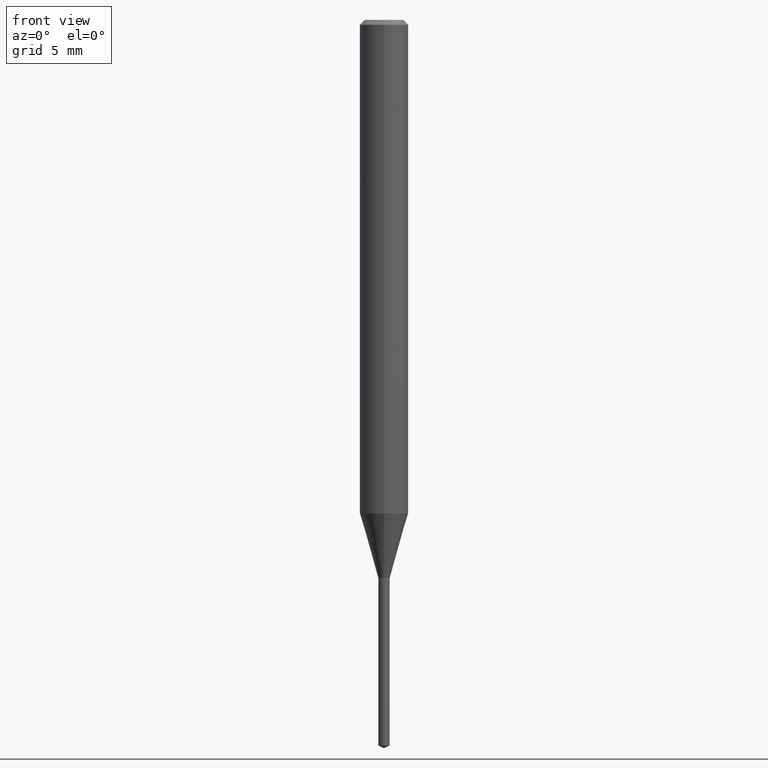
[diagram: clean part render]
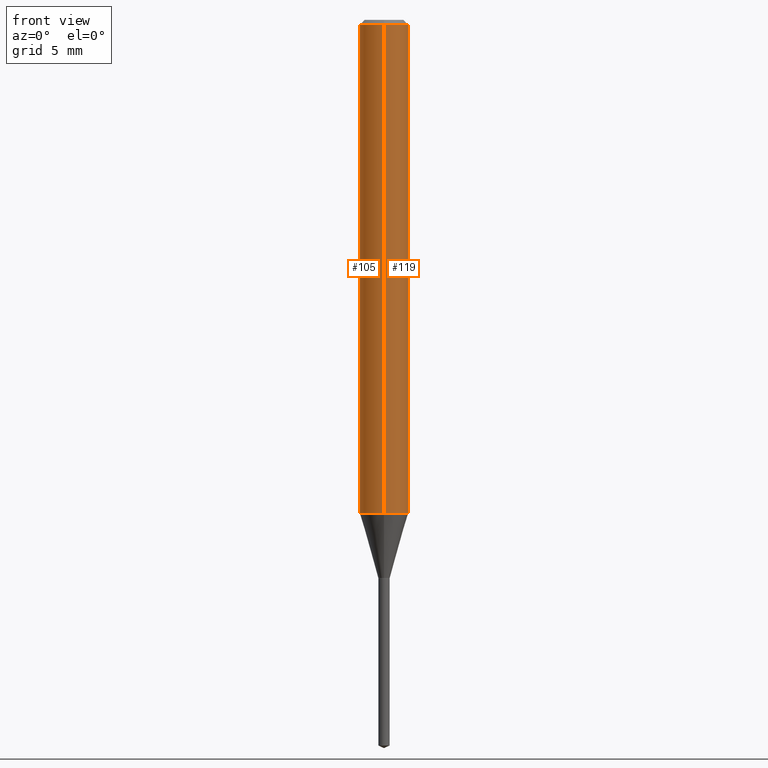
[diagram: same view with one multi-face feature highlighted, each face labeled with its STEP entity id]
A machine part, front view. The highlighted faces form ONE feature: a constant-radius fillet chain: 2 tangent blend faces with common blend radius 1.5 mm. The faces share edges in the B-rep.
Their STEP definitions:
[1] entity #119 (Cylinder):
#119=ADVANCED_FACE('',(#259),#260,.T.);
#127=EDGE_CURVE('',#181,#165,#268,.T.);
#159=EDGE_CURVE('',#167,#165,#304,.T.);
#165=VERTEX_POINT('',#312);
#167=VERTEX_POINT('',#314);
#171=EDGE_CURVE('',#173,#167,#318,.T.);
#173=VERTEX_POINT('',#320);
#181=VERTEX_POINT('',#328);
#201=EDGE_CURVE('',#181,#173,#351,.T.);
#259=FACE_OUTER_BOUND('',#406,.T.);
#260=CYLINDRICAL_SURFACE('',#407,1.5);
#268=CIRCLE('',#419,1.5);
#304=LINE('',#468,#469);
#312=CARTESIAN_POINT('',(1.83690953073357E-016,-1.5,-0.300000000000001));
#314=CARTESIAN_POINT('',(1.83690953073357E-016,-1.5,-30.489));
#318=CIRCLE('',#485,1.5);
#320=CARTESIAN_POINT('',(0.0,1.5,-30.489));
#328=CARTESIAN_POINT('',(0.0,1.5,-0.300000000000001));
#351=LINE('',#529,#530);
#406=EDGE_LOOP('',(#582,#583,#584,#585));
#407=AXIS2_PLACEMENT_3D('',#586,#587,#588);
#419=AXIS2_PLACEMENT_3D('',#598,#599,#600);
#468=CARTESIAN_POINT('',(1.83690953073357E-016,-1.5,-15.3945));
#469=VECTOR('',#649,1.0);
#485=AXIS2_PLACEMENT_3D('',#667,#668,#669);
#529=CARTESIAN_POINT('',(-1.83690953073357E-016,1.5,-15.3945));
#530=VECTOR('',#701,1.0);
#582=ORIENTED_EDGE('',*,*,#201,.F.);
#583=ORIENTED_EDGE('',*,*,#127,.T.);
#584=ORIENTED_EDGE('',*,*,#159,.F.);
#585=ORIENTED_EDGE('',*,*,#171,.F.);
#586=CARTESIAN_POINT('',(0.0,0.0,-15.3945));
#587=DIRECTION('',(-0.0,-0.0,1.0));
#588=DIRECTION('',(0.0,1.0,0.0));
#598=CARTESIAN_POINT('',(0.0,0.0,-0.300000000000001));
#599=DIRECTION('',(0.0,0.0,-1.0));
#600=DIRECTION('',(0.0,1.0,0.0));
#649=DIRECTION('',(-0.0,-0.0,1.0));
#667=CARTESIAN_POINT('',(0.0,0.0,-30.489));
#668=DIRECTION('',(0.0,0.0,-1.0));
#669=DIRECTION('',(0.0,1.0,0.0));
#701=DIRECTION('',(0.0,0.0,-1.0));
[2] entity #105 (Cylinder):
#105=ADVANCED_FACE('',(#241),#242,.T.);
#141=EDGE_CURVE('',#167,#173,#284,.T.);
#159=EDGE_CURVE('',#167,#165,#304,.T.);
#165=VERTEX_POINT('',#312);
#167=VERTEX_POINT('',#314);
#173=VERTEX_POINT('',#320);
#181=VERTEX_POINT('',#328);
#197=EDGE_CURVE('',#165,#181,#346,.T.);
#201=EDGE_CURVE('',#181,#173,#351,.T.);
#241=FACE_OUTER_BOUND('',#385,.T.);
#242=CYLINDRICAL_SURFACE('',#386,1.5);
#284=CIRCLE('',#441,1.5);
#304=LINE('',#468,#469);
#312=CARTESIAN_POINT('',(1.83690953073357E-016,-1.5,-0.300000000000001));
#314=CARTESIAN_POINT('',(1.83690953073357E-016,-1.5,-30.489));
#320=CARTESIAN_POINT('',(0.0,1.5,-30.489));
#328=CARTESIAN_POINT('',(0.0,1.5,-0.300000000000001));
#346=CIRCLE('',#523,1.5);
#351=LINE('',#529,#530);
#385=EDGE_LOOP('',(#548,#549,#550,#551));
#386=AXIS2_PLACEMENT_3D('',#552,#553,#554);
#441=AXIS2_PLACEMENT_3D('',#622,#623,#624);
#468=CARTESIAN_POINT('',(1.83690953073357E-016,-1.5,-15.3945));
#469=VECTOR('',#649,1.0);
#523=AXIS2_PLACEMENT_3D('',#690,#691,#692);
#529=CARTESIAN_POINT('',(-1.83690953073357E-016,1.5,-15.3945));
#530=VECTOR('',#701,1.0);
#548=ORIENTED_EDGE('',*,*,#201,.T.);
#549=ORIENTED_EDGE('',*,*,#141,.F.);
#550=ORIENTED_EDGE('',*,*,#159,.T.);
#551=ORIENTED_EDGE('',*,*,#197,.T.);
#552=CARTESIAN_POINT('',(0.0,0.0,-15.3945));
#553=DIRECTION('',(-0.0,-0.0,1.0));
#554=DIRECTION('',(0.0,1.0,0.0));
#622=CARTESIAN_POINT('',(0.0,0.0,-30.489));
#623=DIRECTION('',(0.0,0.0,-1.0));
#624=DIRECTION('',(0.0,1.0,0.0));
#649=DIRECTION('',(-0.0,-0.0,1.0));
#690=CARTESIAN_POINT('',(0.0,0.0,-0.300000000000001));
#691=DIRECTION('',(0.0,0.0,-1.0));
#692=DIRECTION('',(0.0,1.0,0.0));
#701=DIRECTION('',(0.0,0.0,-1.0));